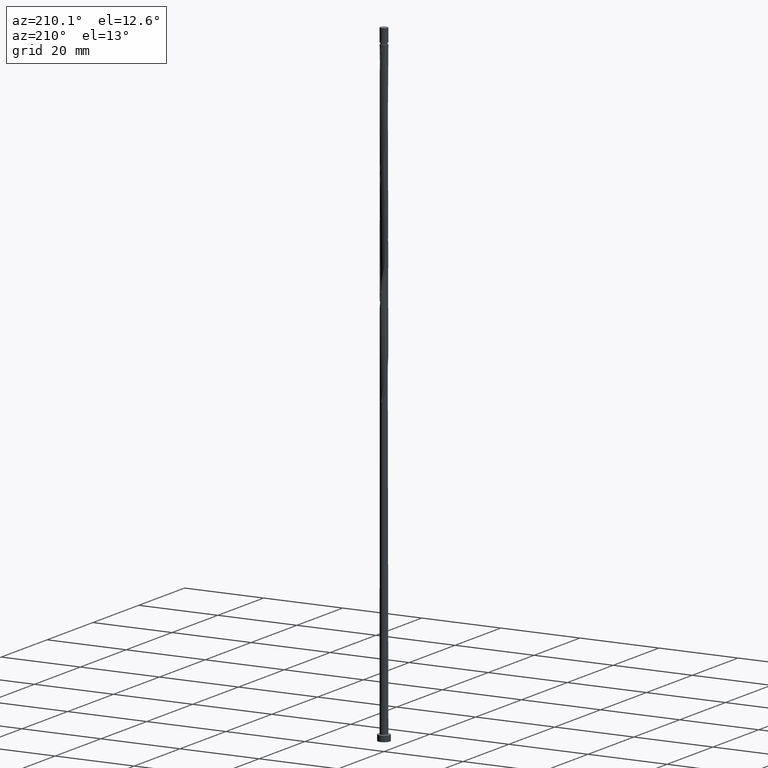
[diagram: clean part render]
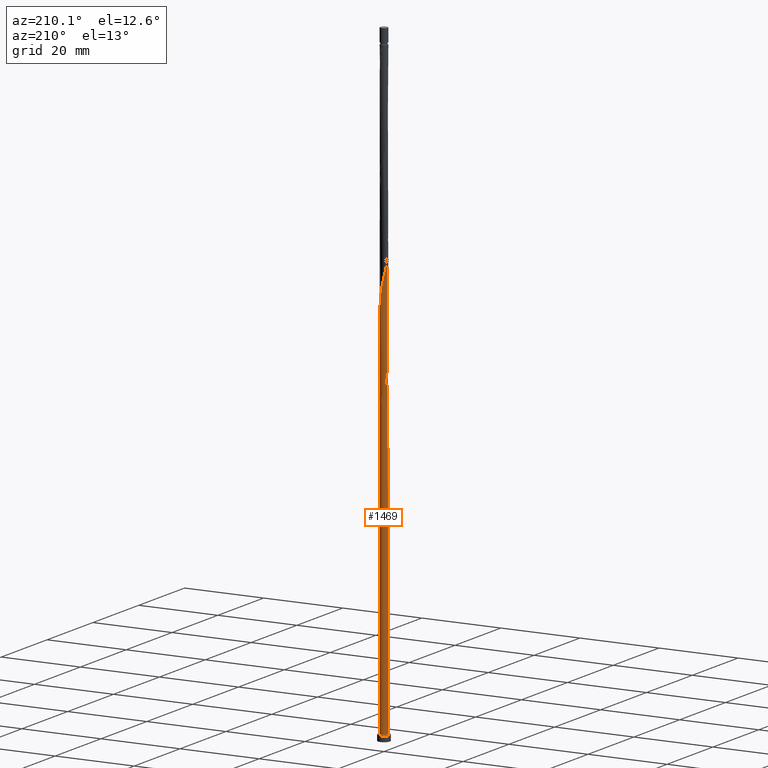
[diagram: same view with one face highlighted and labeled with its STEP entity id]
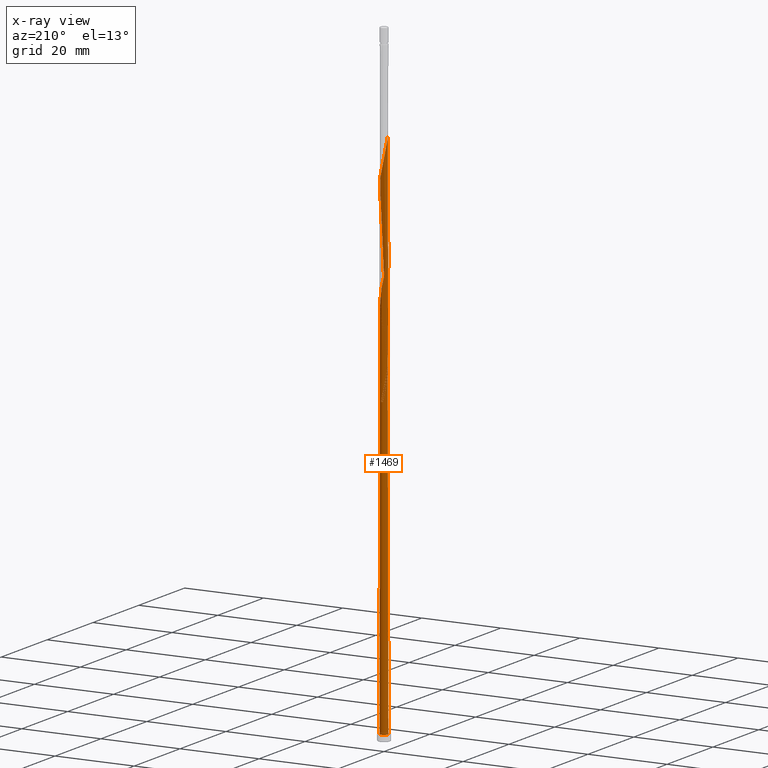
[diagram: x-ray of the same camera — body ghosted, the highlighted face saturated]
A machine part, auxiliary view. The second image highlights one B-rep face of the part: STEP entity #1469.
The next image is the same camera in x-ray: the body ghosted, the highlighted face saturated — about 0% of this face is hidden behind the body in this view.
In plain terms, the highlighted cylindrical surface (bore or boss wall) has radius 0.95 mm, axis along (-0, -0, -1).
Its self-contained STEP definition (entity closure, byte-faithful):
#5 = CARTESIAN_POINT ( 'NONE',  ( 0.5798029950911186559, 0.7525479963984826881, 125.9211361043891202 ) ) ;
#47 = CARTESIAN_POINT ( 'NONE',  ( -0.9484280428683476982, -0.05462826650112707211, 82.28477246802550837 ) ) ;
#52 = VERTEX_POINT ( 'NONE', #59 ) ;
#57 = CARTESIAN_POINT ( 'NONE',  ( -0.6880030621626281873, -0.6691849109111059901, 85.31507549832852533 ) ) ;
#59 = CARTESIAN_POINT ( 'NONE',  ( -0.9499999999999999556, 0.000000000000000000, 1.500000000000000000 ) ) ;
#85 = CARTESIAN_POINT ( 'NONE',  ( -0.9500000000000027311, 0.1088024810158624983, 81.55541864181394374 ) ) ;
#92 = CARTESIAN_POINT ( 'NONE',  ( -0.9500000000000016209, -1.267590554621285089E-15, 82.04137859478524319 ) ) ;
#93 = CARTESIAN_POINT ( 'NONE',  ( -0.5644605288797952536, 0.7762351253795464201, 78.04234822560127327 ) ) ;
#94 = CARTESIAN_POINT ( 'NONE',  ( 0.08090315401905594228, 0.9465488258245169373, 101.6787118619648851 ) ) ;
#102 = CARTESIAN_POINT ( 'NONE',  ( -0.3442996286993299515, -0.8854138951233521126, 87.13325731651036676 ) ) ;
#109 = CYLINDRICAL_SURFACE ( 'NONE', #1305, 0.9499999999999999556 ) ;
#110 = CARTESIAN_POINT ( 'NONE',  ( 0.05519002134093830420, -0.9581809432881897015, 115.6181058013588512 ) ) ;
#116 = CARTESIAN_POINT ( 'NONE',  ( 0.3442996286993296740, 0.8854138951233522237, 127.1332573165103383 ) ) ;
#122 = CARTESIAN_POINT ( 'NONE',  ( -0.08090315401905580350, -0.9465488258245169373, 115.0120451952982279 ) ) ;
#129 = CARTESIAN_POINT ( 'NONE',  ( -0.8945188067868307114, 0.3478401397782068249, 133.7999239831770240 ) ) ;
#144 = AXIS2_PLACEMENT_3D ( 'NONE', #1045, #440, #1404 ) ;
#162 = CARTESIAN_POINT ( 'NONE',  ( -0.2169963293790499737, -0.9349167083608447282, 87.73931792257099005 ) ) ;
#168 = CARTESIAN_POINT ( 'NONE',  ( -0.7683341710418088999, 0.5587151345806725677, 81.07265125590430443 ) ) ;
#172 = CARTESIAN_POINT ( 'NONE',  ( 0.1890476130502585228, -0.9310000000000012710, 89.55749974075277464 ) ) ;
#179 = CARTESIAN_POINT ( 'NONE',  ( 0.8945188067868309334, -0.3478401397782067694, 93.79992398317702396 ) ) ;
#184 =( BOUNDED_CURVE ( )  B_SPLINE_CURVE ( 2, ( #930, #311, #1058, #93, #1533, #806, #1507, #946, #432, #85, #1300 ),
 .UNSPECIFIED., .F., .T. ) 
 B_SPLINE_CURVE_WITH_KNOTS ( ( 3, 2, 2, 2, 2, 3 ),
 ( 0.000000000000000000, 0.01136363636363635354, 0.02272727272727270709, 0.03409090909090906063, 0.04545454545454541417, 0.05452521624175162701 ),
 .UNSPECIFIED. ) 
 CURVE ( )  GEOMETRIC_REPRESENTATION_ITEM ( )  RATIONAL_B_SPLINE_CURVE ( ( 0.9090909090909460311, 0.8998376744372480474, 0.9090909090909460311, 0.8998376744372480474, 0.9090909090909460311, 0.8998376744372480474, 0.9090909090909460311, 0.8998376744372480474, 0.9090909090909460311, 0.9017048011080253112, 0.9061101570135866590 ) ) 
 REPRESENTATION_ITEM ( '' )  );
#200 = FACE_OUTER_BOUND ( 'NONE', #537, .T. ) ;
#203 = EDGE_CURVE ( 'NONE', #772, #1065, #611, .T. ) ;
#216 = CARTESIAN_POINT ( 'NONE',  ( -0.7683341710418090109, -0.5587151345806724567, 84.70901489226793046 ) ) ;
#223 = CARTESIAN_POINT ( 'NONE',  ( -0.08090315401905580350, 0.9465488258245169373, 77.43628761954066420 ) ) ;
#225 = CARTESIAN_POINT ( 'NONE',  ( -0.5644605288797952536, 0.7762351253795464201, 131.3756815589346445 ) ) ;
#232 = CARTESIAN_POINT ( 'NONE',  ( 0.8945188067868309334, -0.3478401397782067694, 120.4665906498436954 ) ) ;
#239 = CARTESIAN_POINT ( 'NONE',  ( 0.8274027123565120823, -0.4668026902076398699, 119.8605300437830863 ) ) ;
#244 = CARTESIAN_POINT ( 'NONE',  ( 0.9484280428683479203, 0.05462826650112696109, 122.2847724680255084 ) ) ;
#251 = CARTESIAN_POINT ( 'NONE',  ( -0.05519002134093817930, 0.9581809432881897015, 128.9514391346921798 ) ) ;
#252 = VECTOR ( 'NONE', #1262, 1000.000000000000000 ) ;
#277 = CIRCLE ( 'NONE', #601, 0.9499999999999999556 ) ;
#286 = CARTESIAN_POINT ( 'NONE',  ( 0.6880030621626284093, 0.6691849109111057681, 98.64840883166189656 ) ) ;
#294 = CARTESIAN_POINT ( 'NONE',  ( 0.3229052047595788455, -0.9038190567118136176, 90.16356034681341214 ) ) ;
#311 = CARTESIAN_POINT ( 'NONE',  ( -0.3229052047595790675, 0.9038190567118135066, 76.83022701348009775 ) ) ;
#320 = CARTESIAN_POINT ( 'NONE',  ( -0.9405736839069130939, -0.1909916324817294286, 82.89083307408613166 ) ) ;
#326 = CARTESIAN_POINT ( 'NONE',  ( -0.8274027123565120823, 0.4668026902076397588, 106.5271967104497435 ) ) ;
#333 = CARTESIAN_POINT ( 'NONE',  ( -0.1890476130502583840, 0.9310000000000012710, 129.5574997407527462 ) ) ;
#340 = CARTESIAN_POINT ( 'NONE',  ( 0.7602866179261938973, -0.5857652406370729148, 119.2544694377224914 ) ) ;
#348 = CARTESIAN_POINT ( 'NONE',  ( -0.6880030621626281873, -0.6691849109111059901, 111.9817421649952252 ) ) ;
#353 = CARTESIAN_POINT ( 'NONE',  ( -0.4716029280196099571, -0.8359110818858597192, 113.1938633771164433 ) ) ;
#364 = CARTESIAN_POINT ( 'NONE',  ( 0.9562824018297828577, -0.08173509947947546483, 121.6787118619649277 ) ) ;
#365 = DIRECTION ( 'NONE',  ( 1.000000000000000000, 0.000000000000000000, 0.000000000000000000 ) ) ;
#388 = CARTESIAN_POINT ( 'NONE',  ( 0.000000000000000000, 0.000000000000000000, 1.500000000000000000 ) ) ;
#406 = CARTESIAN_POINT ( 'NONE',  ( 0.05519002134093830420, -0.9581809432881897015, 88.95143913469217978 ) ) ;
#432 = CARTESIAN_POINT ( 'NONE',  ( -0.9254006043083066180, 0.2147876196288411588, 81.07265125590429022 ) ) ;
#440 = DIRECTION ( 'NONE',  ( 0.000000000000000000, -0.000000000000000000, -1.000000000000000000 ) ) ;
#441 = LINE ( 'NONE', #707, #1450 ) ;
#442 = CARTESIAN_POINT ( 'NONE',  ( -0.4436828668196869940, 0.8400270910456798523, 104.1029542862073214 ) ) ;
#449 = CARTESIAN_POINT ( 'NONE',  ( 0.6623735734029941868, -0.6810001830083094454, 91.98174216499521094 ) ) ;
#452 = ORIENTED_EDGE ( 'NONE', *, *, #1103, .T. ) ;
#457 = CARTESIAN_POINT ( 'NONE',  ( -0.3442996286993297295, 0.8854138951233522237, 78.64840883166188235 ) ) ;
#467 = CARTESIAN_POINT ( 'NONE',  ( -0.4716029280196097906, 0.8359110818858597192, 79.25446943772249142 ) ) ;
#468 = CARTESIAN_POINT ( 'NONE',  ( 0.5644605288797953646, -0.7762351253795464201, 118.0423482256012875 ) ) ;
#476 = CARTESIAN_POINT ( 'NONE',  ( -0.7683341710418090109, -0.5587151345806724567, 111.3756815589345877 ) ) ;
#494 = CARTESIAN_POINT ( 'NONE',  ( -0.1890476130502584395, 0.9310000000000013820, 76.22416640741946026 ) ) ;
#517 = CARTESIAN_POINT ( 'NONE',  ( -0.9499999999999999556, 0.000000000000000000, 160.0000000000000000 ) ) ;
#520 = CARTESIAN_POINT ( 'NONE',  ( 0.4716029280196096241, 0.8359110818858600522, 99.86053004378308628 ) ) ;
#536 = CARTESIAN_POINT ( 'NONE',  ( -0.9405736839069129829, 0.1909916324817295397, 82.89083307408610324 ) ) ;
#537 = EDGE_LOOP ( 'NONE', ( #1271, #1128, #1415, #452, #584, #1099, #879, #1089, #694 ) ) ;
#566 = CARTESIAN_POINT ( 'NONE',  ( 0.8486652799209905007, 0.4482453582502389233, 97.43628761954067841 ) ) ;
#573 = CARTESIAN_POINT ( 'NONE',  ( 0.9254006043083067290, -0.2147876196288410755, 94.40598458923764724 ) ) ;
#579 = DIRECTION ( 'NONE',  ( -1.000000000000000000, 0.000000000000000000, 0.000000000000000000 ) ) ;
#580 = VERTEX_POINT ( 'NONE', #1269 ) ;
#581 = CARTESIAN_POINT ( 'NONE',  ( 0.4716029280196096241, 0.8359110818858600522, 126.5271967104497577 ) ) ;
#584 = ORIENTED_EDGE ( 'NONE', *, *, #1152, .T. ) ;
#588 = CARTESIAN_POINT ( 'NONE',  ( 0.7683341710418093440, 0.5587151345806724567, 124.7090148922679163 ) ) ;
#597 = CARTESIAN_POINT ( 'NONE',  ( -0.3442996286993299515, -0.8854138951233521126, 113.7999239831770524 ) ) ;
#598 = CARTESIAN_POINT ( 'NONE',  ( 0.000000000000000000, 0.000000000000000000, 1.500000000000000000 ) ) ;
#601 = AXIS2_PLACEMENT_3D ( 'NONE', #388, #1443, #365 ) ;
#605 = CARTESIAN_POINT ( 'NONE',  ( -0.9500000000000013989, 5.608807763810995000E-17, 135.3747119281185576 ) ) ;
#611 =( BOUNDED_CURVE ( )  B_SPLINE_CURVE ( 2, ( #1368, #1017, #47, #320, #813, #1287, #216, #57, #1172, #1480, #102, #162, #1278, #406, #172, #294, #898, #785, #449, #683, #1250, #179, #573, #655, #1138, #768, #776, #566, #1472, #286, #1051, #520, #1164, #1489, #94, #939, #1413, #1516, #442, #931, #1242, #1407, #326, #638, #647, #1129, #1234, #1119, #957, #1429, #476, #348, #1181, #353, #597, #842, #122, #110, #1434, #962, #856, #468, #699, #340, #239, #232, #979, #364, #244, #1309, #846, #1535, #588, #1315, #5, #581, #116, #728, #1070, #251, #333, #969, #709, #225, #1060, #1093, #1442, #129, #1323, #613, #605 ),
 .UNSPECIFIED., .F., .T. ) 
 B_SPLINE_CURVE_WITH_KNOTS ( ( 3, 2, 2, 2, 2, 2, 2, 2, 2, 2, 2, 2, 2, 2, 2, 2, 2, 2, 2, 2, 2, 2, 2, 2, 2, 2, 2, 2, 2, 2, 2, 2, 2, 2, 2, 2, 2, 2, 2, 2, 2, 2, 2, 2, 2, 3 ),
 ( 0.05452521624175162701, 0.05681818181818176772, 0.06818181818181823228, 0.07954545454545458583, 0.09090909090909093937, 0.1022727272727272929, 0.1136363636363636465, 0.1250000000000000000, 0.1363636363636363535, 0.1477272727272727071, 0.1590909090909090606, 0.1704545454545454142, 0.1818181818181817677, 0.1931818181818182323, 0.2045454545454545858, 0.2159090909090909394, 0.2272727272727272929, 0.2386363636363636465, 0.2500000000000000000, 0.2613636363636363535, 0.2727272727272727071, 0.2840909090909090606, 0.2954545454545454142, 0.3068181818181817677, 0.3181818181818182323, 0.3295454545454545858, 0.3409090909090909394, 0.3522727272727272929, 0.3636363636363636465, 0.3750000000000000000, 0.3863636363636363535, 0.3977272727272727071, 0.4090909090909090606, 0.4204545454545454142, 0.4318181818181817677, 0.4431818181818182323, 0.4545454545454545858, 0.4659090909090909394, 0.4772727272727272929, 0.4886363636363636465, 0.5000000000000000000, 0.5113636363636363535, 0.5227272727272727071, 0.5340909090909091717, 0.5454545454545454142, 0.5545252162417512176 ),
 .UNSPECIFIED. ) 
 CURVE ( )  GEOMETRIC_REPRESENTATION_ITEM ( )  RATIONAL_B_SPLINE_CURVE ( ( 0.9061101570135866590, 0.9072237824201687673, 0.9090909090909460311, 0.8998376744372480474, 0.9090909090909460311, 0.8998376744372480474, 0.9090909090909460311, 0.8998376744372480474, 0.9090909090909460311, 0.8998376744372480474, 0.9090909090909460311, 0.8998376744372480474, 0.9090909090909460311, 0.8998376744372480474, 0.9090909090909460311, 0.8998376744372480474, 0.9090909090909460311, 0.8998376744372480474, 0.9090909090909460311, 0.8998376744372480474, 0.9090909090909460311, 0.8998376744372480474, 0.9090909090909460311, 0.8998376744372480474, 0.9090909090909460311, 0.8998376744372480474, 0.9090909090909460311, 0.8998376744372480474, 0.9090909090909460311, 0.8998376744372480474, 0.9090909090909460311, 0.8998376744372480474, 0.9090909090909460311, 0.8998376744372480474, 0.9090909090909460311, 0.8998376744372480474, 0.9090909090909460311, 0.8998376744372480474, 0.9090909090909460311, 0.8998376744372480474, 0.9090909090909460311, 0.8998376744372480474, 0.9090909090909460311, 0.8998376744372480474, 0.9090909090909460311, 0.8998376744372480474, 0.9090909090909460311, 0.8998376744372480474, 0.9090909090909460311, 0.8998376744372480474, 0.9090909090909460311, 0.8998376744372480474, 0.9090909090909460311, 0.8998376744372480474, 0.9090909090909460311, 0.8998376744372480474, 0.9090909090909460311, 0.8998376744372480474, 0.9090909090909460311, 0.8998376744372480474, 0.9090909090909460311, 0.8998376744372480474, 0.9090909090909460311, 0.8998376744372480474, 0.9090909090909460311, 0.8998376744372480474, 0.9090909090909460311, 0.8998376744372480474, 0.9090909090909460311, 0.8998376744372480474, 0.9090909090909460311, 0.8998376744372480474, 0.9090909090909460311, 0.8998376744372480474, 0.9090909090909460311, 0.8998376744372480474, 0.9090909090909460311, 0.8998376744372480474, 0.9090909090909460311, 0.8998376744372480474, 0.9090909090909460311, 0.8998376744372480474, 0.9090909090909460311, 0.8998376744372480474, 0.9090909090909460311, 0.8998376744372480474, 0.9090909090909460311, 0.8998376744372480474, 0.9090909090909460311, 0.9017048011080257552, 0.9061101570135861039 ) ) 
 REPRESENTATION_ITEM ( '' )  );
#613 = CARTESIAN_POINT ( 'NONE',  ( -0.9500000000000013989, 0.1088024810158683825, 134.8887519751472439 ) ) ;
#638 = CARTESIAN_POINT ( 'NONE',  ( -0.8945188067868307114, 0.3478401397782068249, 107.1332573165104094 ) ) ;
#647 = CARTESIAN_POINT ( 'NONE',  ( -0.9254006043083066180, 0.2147876196288411588, 107.7393179225709758 ) ) ;
#655 = CARTESIAN_POINT ( 'NONE',  ( 0.9562824018297828577, -0.08173509947947546483, 95.01204519529827053 ) ) ;
#668 = CARTESIAN_POINT ( 'NONE',  ( -0.8486652799209899456, 0.4482453582502393674, 81.67871186196492772 ) ) ;
#675 = DIRECTION ( 'NONE',  ( -0.000000000000000000, -0.000000000000000000, -1.000000000000000000 ) ) ;
#683 = CARTESIAN_POINT ( 'NONE',  ( 0.7602866179261938973, -0.5857652406370729148, 92.58780277105583423 ) ) ;
#690 = CARTESIAN_POINT ( 'NONE',  ( -0.2169963293790500292, 0.9349167083608446172, 78.04234822560130169 ) ) ;
#694 = ORIENTED_EDGE ( 'NONE', *, *, #1281, .F. ) ;
#697 = CARTESIAN_POINT ( 'NONE',  ( 0.1890476130502589669, 0.9310000000000014930, 76.22416640741946026 ) ) ;
#699 = CARTESIAN_POINT ( 'NONE',  ( 0.6623735734029941868, -0.6810001830083094454, 118.6484088316618823 ) ) ;
#707 = CARTESIAN_POINT ( 'NONE',  ( -0.9499999999999999556, 0.000000000000000000, 160.0000000000000000 ) ) ;
#709 = CARTESIAN_POINT ( 'NONE',  ( -0.4436828668196869940, 0.8400270910456798523, 130.7696209528739928 ) ) ;
#727 = VERTEX_POINT ( 'NONE', #697 ) ;
#728 = CARTESIAN_POINT ( 'NONE',  ( 0.2169963293790501679, 0.9349167083608447282, 127.7393179225710043 ) ) ;
#731 = AXIS2_PLACEMENT_3D ( 'NONE', #598, #1205, #1079 ) ;
#768 = CARTESIAN_POINT ( 'NONE',  ( 0.9405736839069130939, 0.1909916324817293176, 96.22416640741944605 ) ) ;
#772 = VERTEX_POINT ( 'NONE', #92 ) ;
#776 = CARTESIAN_POINT ( 'NONE',  ( 0.8946194819139514642, 0.3196184953659840233, 96.83022701348002670 ) ) ;
#785 = CARTESIAN_POINT ( 'NONE',  ( 0.5644605288797953646, -0.7762351253795464201, 91.37568155893461608 ) ) ;
#790 = EDGE_CURVE ( 'NONE', #1188, #727, #1292, .T. ) ;
#793 = CARTESIAN_POINT ( 'NONE',  ( -0.9500000000000015099, 0.02733675019762973196, 83.61818954866882336 ) ) ;
#806 = CARTESIAN_POINT ( 'NONE',  ( -0.7602866179261938973, 0.5857652406370729148, 79.25446943772249142 ) ) ;
#812 = CARTESIAN_POINT ( 'NONE',  ( 0.1890476130502589669, 0.9310000000000014930, 76.22416640741946026 ) ) ;
#813 = CARTESIAN_POINT ( 'NONE',  ( -0.8946194819139514642, -0.3196184953659841899, 83.49689368014671231 ) ) ;
#842 = CARTESIAN_POINT ( 'NONE',  ( -0.2169963293790499737, -0.9349167083608447282, 114.4059845892376615 ) ) ;
#846 = CARTESIAN_POINT ( 'NONE',  ( 0.8946194819139514642, 0.3196184953659840233, 123.4968936801467265 ) ) ;
#856 = CARTESIAN_POINT ( 'NONE',  ( 0.4436828668196867720, -0.8400270910456800744, 117.4362876195406784 ) ) ;
#879 = ORIENTED_EDGE ( 'NONE', *, *, #1491, .F. ) ;
#898 = CARTESIAN_POINT ( 'NONE',  ( 0.4436828668196867720, -0.8400270910456800744, 90.76962095287399279 ) ) ;
#930 = CARTESIAN_POINT ( 'NONE',  ( -0.1890476130502584395, 0.9310000000000012710, 76.22416640741946026 ) ) ;
#931 = CARTESIAN_POINT ( 'NONE',  ( -0.5644605288797952536, 0.7762351253795464201, 104.7090148922679447 ) ) ;
#939 = CARTESIAN_POINT ( 'NONE',  ( -0.05519002134093817930, 0.9581809432881897015, 102.2847724680255368 ) ) ;
#946 = CARTESIAN_POINT ( 'NONE',  ( -0.8945188067868307114, 0.3478401397782068249, 80.46659064984370957 ) ) ;
#957 = CARTESIAN_POINT ( 'NONE',  ( -0.8946194819139514642, -0.3196184953659841899, 110.1635603468133979 ) ) ;
#962 = CARTESIAN_POINT ( 'NONE',  ( 0.3229052047595788455, -0.9038190567118136176, 116.8302270134800409 ) ) ;
#969 = CARTESIAN_POINT ( 'NONE',  ( -0.3229052047595790675, 0.9038190567118135066, 130.1635603468133979 ) ) ;
#979 = CARTESIAN_POINT ( 'NONE',  ( 0.9254006043083067290, -0.2147876196288410755, 121.0726512559042618 ) ) ;
#1017 = CARTESIAN_POINT ( 'NONE',  ( -0.9500000000000011768, -0.02733675019763583472, 82.16347659950346838 ) ) ;
#1024 = CARTESIAN_POINT ( 'NONE',  ( -0.9500000000000013989, -1.275068964973033794E-15, 83.74028755338702013 ) ) ;
#1045 = CARTESIAN_POINT ( 'NONE',  ( 0.000000000000000000, 0.000000000000000000, 76.22416640741946026 ) ) ;
#1051 = CARTESIAN_POINT ( 'NONE',  ( 0.5798029950911186559, 0.7525479963984826881, 99.25446943772247721 ) ) ;
#1058 = CARTESIAN_POINT ( 'NONE',  ( -0.4436828668196869940, 0.8400270910456798523, 77.43628761954066420 ) ) ;
#1060 = CARTESIAN_POINT ( 'NONE',  ( -0.6623735734029941868, 0.6810001830083094454, 131.9817421649952109 ) ) ;
#1065 = VERTEX_POINT ( 'NONE', #1194 ) ;
#1068 = CARTESIAN_POINT ( 'NONE',  ( 0.05519002134093833889, 0.9581809432881893684, 76.83022701348005512 ) ) ;
#1070 = CARTESIAN_POINT ( 'NONE',  ( 0.08090315401905594228, 0.9465488258245169373, 128.3453785286315849 ) ) ;
#1079 = DIRECTION ( 'NONE',  ( 1.000000000000000000, 0.000000000000000000, 0.000000000000000000 ) ) ;
#1089 = ORIENTED_EDGE ( 'NONE', *, *, #790, .T. ) ;
#1093 = CARTESIAN_POINT ( 'NONE',  ( -0.7602866179261938973, 0.5857652406370729148, 132.5878027710558058 ) ) ;
#1099 = ORIENTED_EDGE ( 'NONE', *, *, #1263, .F. ) ;
#1102 =( BOUNDED_CURVE ( )  B_SPLINE_CURVE ( 2, ( #1024, #793, #1495, #536, #1470, #668, #168, #1127, #1270, #467, #457, #690, #223, #1068, #812 ),
 .UNSPECIFIED., .F., .T. ) 
 B_SPLINE_CURVE_WITH_KNOTS ( ( 3, 2, 2, 2, 2, 2, 2, 3 ),
 ( 0.9295252162417511066, 0.9318181818181817677, 0.9431818181818182323, 0.9545454545454545858, 0.9659090909090909394, 0.9772727272727272929, 0.9886363636363636465, 1.000000000000000000 ),
 .UNSPECIFIED. ) 
 CURVE ( )  GEOMETRIC_REPRESENTATION_ITEM ( )  RATIONAL_B_SPLINE_CURVE ( ( 0.9061101570135855487, 0.9072237824201677681, 0.9090909090909454759, 0.8998376744372476033, 0.9090909090909454759, 0.8998376744372476033, 0.9090909090909454759, 0.8998376744372476033, 0.9090909090909454759, 0.8998376744372476033, 0.9090909090909454759, 0.8998376744372476033, 0.9090909090909454759, 0.8998376744372476033, 0.9090909090909454759 ) ) 
 REPRESENTATION_ITEM ( '' )  );
#1103 = EDGE_CURVE ( 'NONE', #52, #580, #277, .T. ) ;
#1119 = CARTESIAN_POINT ( 'NONE',  ( -0.9405736839069130939, -0.1909916324817294286, 109.5574997407528173 ) ) ;
#1127 = CARTESIAN_POINT ( 'NONE',  ( -0.6880030621626279652, 0.6691849109111058791, 80.46659064984369536 ) ) ;
#1128 = ORIENTED_EDGE ( 'NONE', *, *, #203, .F. ) ;
#1129 = CARTESIAN_POINT ( 'NONE',  ( -0.9562824018297828577, 0.08173509947947553422, 108.3453785286315707 ) ) ;
#1138 = CARTESIAN_POINT ( 'NONE',  ( 0.9484280428683479203, 0.05462826650112696109, 95.61810580135882276 ) ) ;
#1152 = EDGE_CURVE ( 'NONE', #580, #52, #1405, .T. ) ;
#1164 = CARTESIAN_POINT ( 'NONE',  ( 0.3442996286993296740, 0.8854138951233522237, 100.4665906498437096 ) ) ;
#1172 = CARTESIAN_POINT ( 'NONE',  ( -0.5798029950911187669, -0.7525479963984826881, 85.92113610438916282 ) ) ;
#1181 = CARTESIAN_POINT ( 'NONE',  ( -0.5798029950911187669, -0.7525479963984826881, 112.5878027710558342 ) ) ;
#1186 = CARTESIAN_POINT ( 'NONE',  ( 0.000000000000000000, 0.000000000000000000, 160.0000000000000000 ) ) ;
#1188 = VERTEX_POINT ( 'NONE', #494 ) ;
#1194 = CARTESIAN_POINT ( 'NONE',  ( -0.9500000000000013989, 5.608807763810995000E-17, 135.3747119281185576 ) ) ;
#1205 = DIRECTION ( 'NONE',  ( 0.000000000000000000, 0.000000000000000000, 1.000000000000000000 ) ) ;
#1234 = CARTESIAN_POINT ( 'NONE',  ( -0.9484280428683476982, -0.05462826650112707211, 108.9514391346921656 ) ) ;
#1241 = LINE ( 'NONE', #517, #252 ) ;
#1242 = CARTESIAN_POINT ( 'NONE',  ( -0.6623735734029941868, 0.6810001830083094454, 105.3150754983285395 ) ) ;
#1250 = CARTESIAN_POINT ( 'NONE',  ( 0.8274027123565120823, -0.4668026902076398699, 93.19386337711641488 ) ) ;
#1262 = DIRECTION ( 'NONE',  ( -0.000000000000000000, -0.000000000000000000, -1.000000000000000000 ) ) ;
#1263 = EDGE_CURVE ( 'NONE', #772, #52, #1241, .T. ) ;
#1269 = CARTESIAN_POINT ( 'NONE',  ( 0.9499999999999999556, 0.000000000000000000, 1.500000000000000000 ) ) ;
#1270 = CARTESIAN_POINT ( 'NONE',  ( -0.5798029950911188779, 0.7525479963984831322, 79.86053004378308628 ) ) ;
#1271 = ORIENTED_EDGE ( 'NONE', *, *, #1359, .F. ) ;
#1278 = CARTESIAN_POINT ( 'NONE',  ( -0.08090315401905580350, -0.9465488258245169373, 88.34537852863157070 ) ) ;
#1281 = EDGE_CURVE ( 'NONE', #1303, #727, #1102, .T. ) ;
#1287 = CARTESIAN_POINT ( 'NONE',  ( -0.8486652799209901676, -0.4482453582502393119, 84.10295428620734981 ) ) ;
#1292 = CIRCLE ( 'NONE', #144, 0.9499999999999999556 ) ;
#1300 = CARTESIAN_POINT ( 'NONE',  ( -0.9500000000000016209, -1.267590554621285089E-15, 82.04137859478525741 ) ) ;
#1303 = VERTEX_POINT ( 'NONE', #1524 ) ;
#1305 = AXIS2_PLACEMENT_3D ( 'NONE', #1186, #1391, #579 ) ;
#1309 = CARTESIAN_POINT ( 'NONE',  ( 0.9405736839069130939, 0.1909916324817293176, 122.8908330740861317 ) ) ;
#1315 = CARTESIAN_POINT ( 'NONE',  ( 0.6880030621626284093, 0.6691849109111057681, 125.3150754983285395 ) ) ;
#1323 = CARTESIAN_POINT ( 'NONE',  ( -0.9254006043083066180, 0.2147876196288411588, 134.4059845892376472 ) ) ;
#1359 = EDGE_CURVE ( 'NONE', #1065, #1303, #441, .T. ) ;
#1368 = CARTESIAN_POINT ( 'NONE',  ( -0.9500000000000016209, -1.267590554621285089E-15, 82.04137859478525741 ) ) ;
#1391 = DIRECTION ( 'NONE',  ( -0.000000000000000000, -0.000000000000000000, -1.000000000000000000 ) ) ;
#1404 = DIRECTION ( 'NONE',  ( -1.000000000000000000, 0.000000000000000000, 0.000000000000000000 ) ) ;
#1405 = CIRCLE ( 'NONE', #731, 0.9499999999999999556 ) ;
#1407 = CARTESIAN_POINT ( 'NONE',  ( -0.7602866179261938973, 0.5857652406370729148, 105.9211361043891770 ) ) ;
#1413 = CARTESIAN_POINT ( 'NONE',  ( -0.1890476130502583840, 0.9310000000000012710, 102.8908330740861317 ) ) ;
#1415 = ORIENTED_EDGE ( 'NONE', *, *, #1263, .T. ) ;
#1429 = CARTESIAN_POINT ( 'NONE',  ( -0.8486652799209901676, -0.4482453582502393119, 110.7696209528740354 ) ) ;
#1434 = CARTESIAN_POINT ( 'NONE',  ( 0.1890476130502585228, -0.9310000000000012710, 116.2241664074194176 ) ) ;
#1442 = CARTESIAN_POINT ( 'NONE',  ( -0.8274027123565120823, 0.4668026902076397588, 133.1938633771164291 ) ) ;
#1443 = DIRECTION ( 'NONE',  ( 0.000000000000000000, 0.000000000000000000, 1.000000000000000000 ) ) ;
#1450 = VECTOR ( 'NONE', #675, 1000.000000000000000 ) ;
#1469 = ADVANCED_FACE ( 'NONE', ( #200 ), #109, .T. ) ;
#1470 = CARTESIAN_POINT ( 'NONE',  ( -0.8946194819139515753, 0.3196184953659843564, 82.28477246802550837 ) ) ;
#1472 = CARTESIAN_POINT ( 'NONE',  ( 0.7683341710418093440, 0.5587151345806724567, 98.04234822560124485 ) ) ;
#1480 = CARTESIAN_POINT ( 'NONE',  ( -0.4716029280196099571, -0.8359110818858597192, 86.52719671044977190 ) ) ;
#1489 = CARTESIAN_POINT ( 'NONE',  ( 0.2169963293790501679, 0.9349167083608447282, 101.0726512559043186 ) ) ;
#1491 = EDGE_CURVE ( 'NONE', #1188, #772, #184, .T. ) ;
#1495 = CARTESIAN_POINT ( 'NONE',  ( -0.9484280428683476982, 0.05462826650112719007, 83.49689368014674073 ) ) ;
#1507 = CARTESIAN_POINT ( 'NONE',  ( -0.8274027123565120823, 0.4668026902076397588, 79.86053004378308628 ) ) ;
#1516 = CARTESIAN_POINT ( 'NONE',  ( -0.3229052047595790675, 0.9038190567118135066, 103.4968936801467407 ) ) ;
#1524 = CARTESIAN_POINT ( 'NONE',  ( -0.9500000000000013989, -1.275068964973033597E-15, 83.74028755338702013 ) ) ;
#1533 = CARTESIAN_POINT ( 'NONE',  ( -0.6623735734029941868, 0.6810001830083094454, 78.64840883166185392 ) ) ;
#1535 = CARTESIAN_POINT ( 'NONE',  ( 0.8486652799209905007, 0.4482453582502389233, 124.1029542862073498 ) ) ;